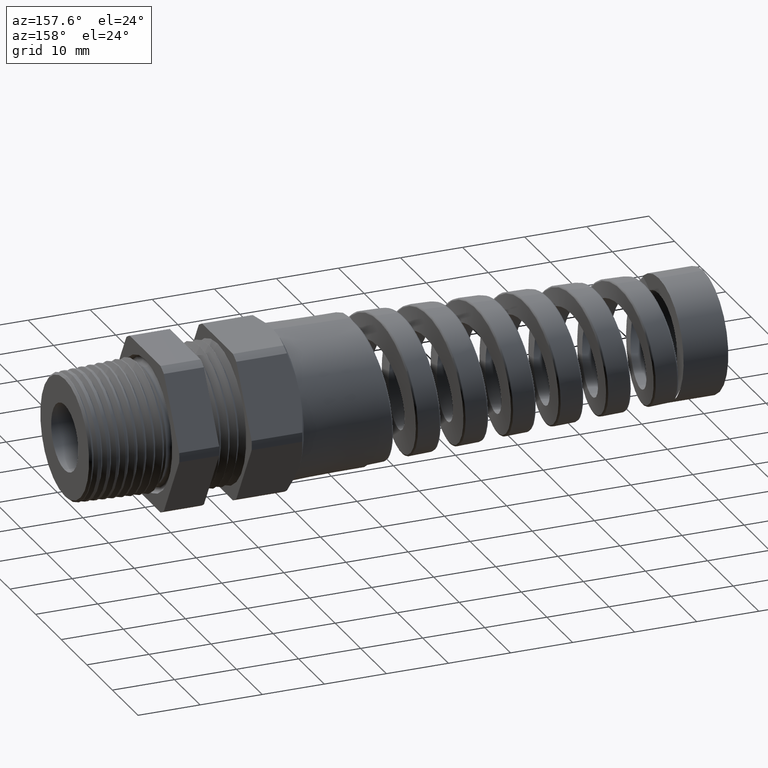
[diagram: clean part render]
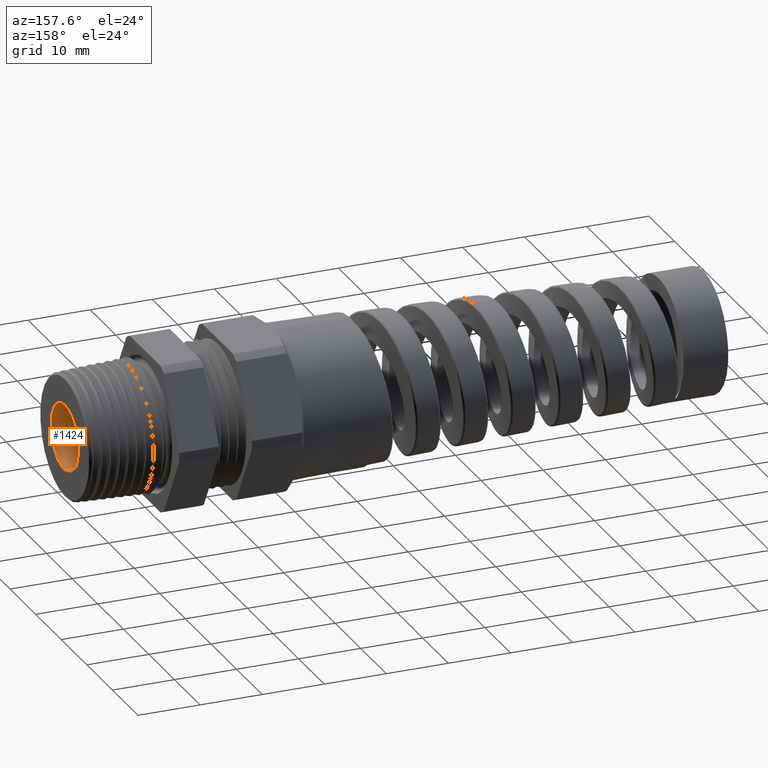
[diagram: same view with one face highlighted and labeled with its STEP entity id]
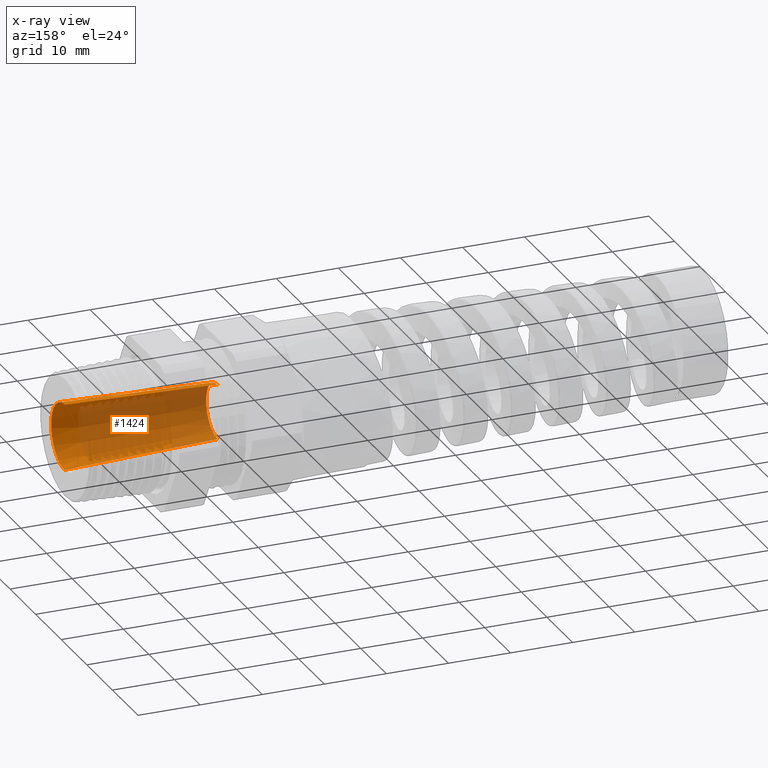
[diagram: x-ray of the same camera — body ghosted, the highlighted face saturated]
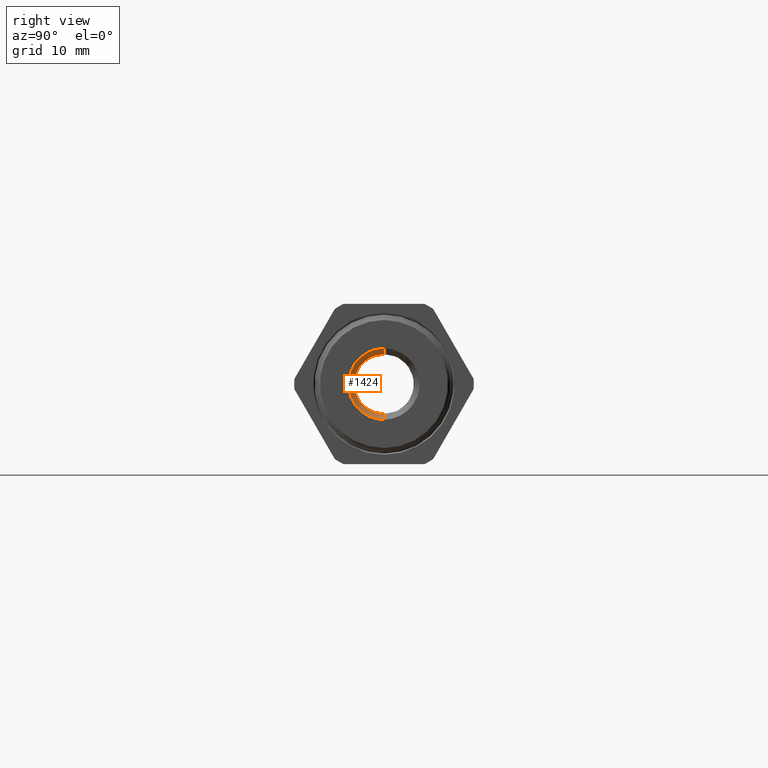
[diagram: same view with one face highlighted and labeled with its STEP entity id]
A machine part, auxiliary view. The second image highlights one B-rep face of the part: STEP entity #1424.
The next image is the same camera in x-ray: the body ghosted, the highlighted face saturated — about 72% of this face is hidden behind the body in this view.
A second angle (right view) of the same face is appended — the face is thin or edge-on in the first view.
In plain terms, the highlighted conical surface has half-angle 2 deg.
Its self-contained STEP definition (entity closure, byte-faithful):
#1253 = VERTEX_POINT ( 'NONE', #8768 ) ;
#1254 = VERTEX_POINT ( 'NONE', #8767 ) ;
#1266 = ORIENTED_EDGE ( 'NONE', *, *, #1267, .F. ) ;
#1267 = EDGE_CURVE ( 'NONE', #1442, #1253, #8779, .T. ) ;
#1300 = EDGE_CURVE ( 'NONE', #1253, #1254, #9074, .T. ) ;
#1302 = ORIENTED_EDGE ( 'NONE', *, *, #1300, .F. ) ;
#1423 = EDGE_LOOP ( 'NONE', ( #1427, #1426, #1302, #1266 ) ) ;
#1424 = ADVANCED_FACE ( 'NONE', ( #9068 ), #9067, .F. ) ;
#1425 = EDGE_CURVE ( 'NONE', #1455, #1254, #9066, .T. ) ;
#1426 = ORIENTED_EDGE ( 'NONE', *, *, #1425, .T. ) ;
#1427 = ORIENTED_EDGE ( 'NONE', *, *, #1441, .T. ) ;
#1441 = EDGE_CURVE ( 'NONE', #1442, #1455, #9154, .T. ) ;
#1442 = VERTEX_POINT ( 'NONE', #9149 ) ;
#1455 = VERTEX_POINT ( 'NONE', #9193 ) ;
#8767 = CARTESIAN_POINT ( 'NONE',  ( 0.5100000000000000100, 2.557601921680126100E-017, 0.2088440457657528600 ) ) ;
#8768 = CARTESIAN_POINT ( 'NONE',  ( 0.5100000000000000100, 0.0000000000000000000, -0.2088440457657528600 ) ) ;
#8776 = DIRECTION ( 'NONE',  ( 0.9993908270190957600, 0.0000000000000000000, -0.03489949670250170500 ) ) ;
#8777 = VECTOR ( 'NONE', #8776, 39.37007874015748900 ) ;
#8778 = CARTESIAN_POINT ( 'NONE',  ( -0.4591666666666666700, 0.0000000000000000000, -0.1749999999999999900 ) ) ;
#8779 = LINE ( 'NONE', #8778, #8777 ) ;
#9059 = DIRECTION ( 'NONE',  ( 0.9993908270190957600, 4.273955692857231900E-018, 0.03489949670250170500 ) ) ;
#9060 = VECTOR ( 'NONE', #9059, 39.37007874015748900 ) ;
#9061 = CARTESIAN_POINT ( 'NONE',  ( -0.4591666666666666700, 2.143131898507868000E-017, 0.1749999999999999900 ) ) ;
#9062 = DIRECTION ( 'NONE',  ( 0.0000000000000000000, 0.0000000000000000000, -1.000000000000000000 ) ) ;
#9063 = DIRECTION ( 'NONE',  ( 1.000000000000000000, 0.0000000000000000000, 0.0000000000000000000 ) ) ;
#9064 = CARTESIAN_POINT ( 'NONE',  ( -0.4591666666666666700, 0.0000000000000000000, 0.0000000000000000000 ) ) ;
#9065 = AXIS2_PLACEMENT_3D ( 'NONE', #9064, #9063, #9062 ) ;
#9066 = LINE ( 'NONE', #9061, #9060 ) ;
#9067 = CONICAL_SURFACE ( 'NONE', #9065, 0.1749999999999999900, 0.03490658503988732600 ) ;
#9068 = FACE_OUTER_BOUND ( 'NONE', #1423, .T. ) ;
#9070 = DIRECTION ( 'NONE',  ( 0.0000000000000000000, 0.0000000000000000000, 1.000000000000000000 ) ) ;
#9071 = DIRECTION ( 'NONE',  ( -1.000000000000000000, 0.0000000000000000000, 0.0000000000000000000 ) ) ;
#9072 = CARTESIAN_POINT ( 'NONE',  ( 0.5100000000000000100, 0.0000000000000000000, 0.0000000000000000000 ) ) ;
#9073 = AXIS2_PLACEMENT_3D ( 'NONE', #9072, #9071, #9070 ) ;
#9074 = CIRCLE ( 'NONE', #9073, 0.2088440457657528600 ) ;
#9149 = CARTESIAN_POINT ( 'NONE',  ( -0.4591666666666666700, 0.0000000000000000000, -0.1749999999999999900 ) ) ;
#9150 = DIRECTION ( 'NONE',  ( 0.0000000000000000000, 0.0000000000000000000, 1.000000000000000000 ) ) ;
#9151 = DIRECTION ( 'NONE',  ( -1.000000000000000000, 0.0000000000000000000, 0.0000000000000000000 ) ) ;
#9152 = CARTESIAN_POINT ( 'NONE',  ( -0.4591666666666666700, 0.0000000000000000000, 0.0000000000000000000 ) ) ;
#9153 = AXIS2_PLACEMENT_3D ( 'NONE', #9152, #9151, #9150 ) ;
#9154 = CIRCLE ( 'NONE', #9153, 0.1749999999999999900 ) ;
#9193 = CARTESIAN_POINT ( 'NONE',  ( -0.4591666666666666700, 2.350366910093997000E-017, 0.1749999999999999900 ) ) ;